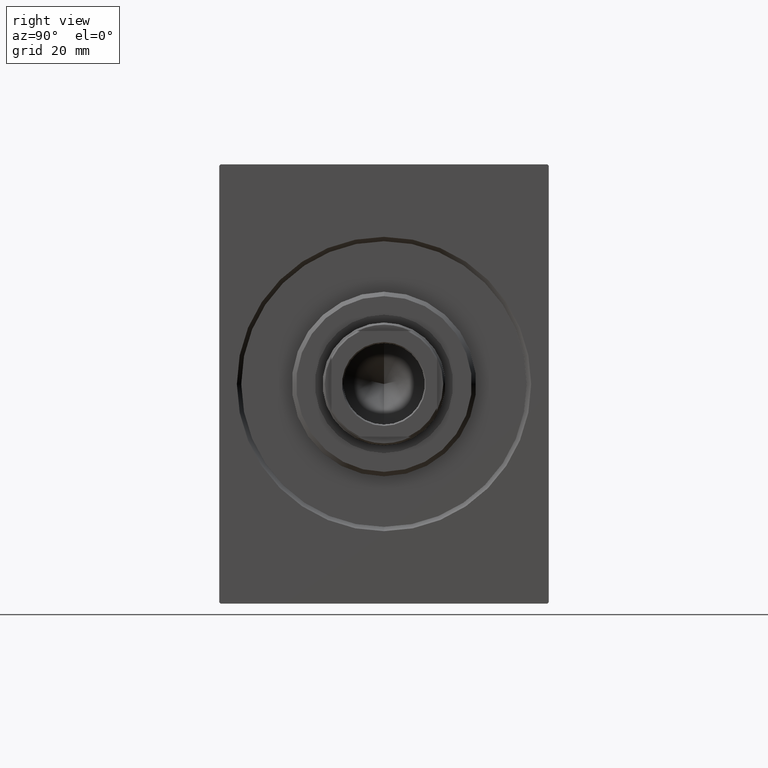
[diagram: clean part render]
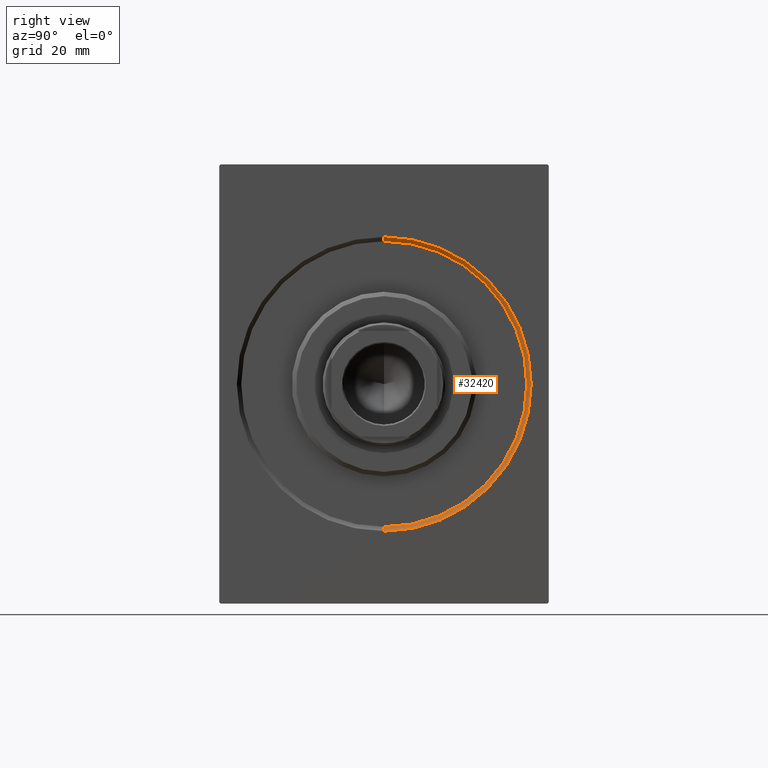
[diagram: same view with one face highlighted and labeled with its STEP entity id]
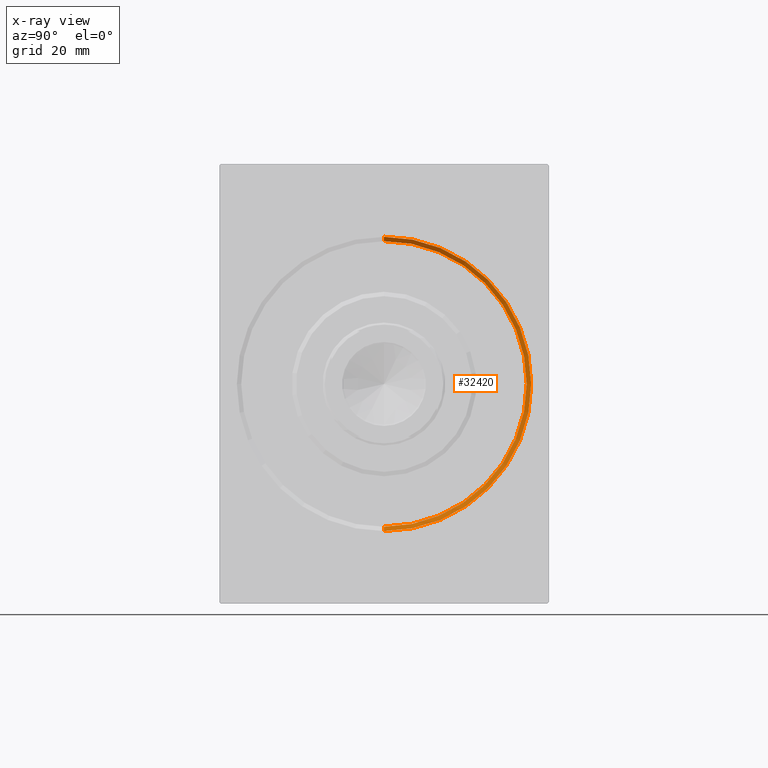
[diagram: x-ray of the same camera — body ghosted, the highlighted face saturated]
A machine part, right view. The second image highlights one B-rep face of the part: STEP entity #32420.
The next image is the same camera in x-ray: the body ghosted, the highlighted face saturated — about 0% of this face is hidden behind the body in this view.
In plain terms, the highlighted conical surface has half-angle 45 deg.
Its self-contained STEP definition (entity closure, byte-faithful):
#199 = EDGE_CURVE ( 'NONE', #8059, #30623, #35343, .T. ) ;
#1860 = EDGE_CURVE ( 'NONE', #8059, #9787, #34172, .T. ) ;
#2044 = CARTESIAN_POINT ( 'NONE',  ( 0.9999999999999870104, 3.980102097228898626E-15, -32.50000000000000000 ) ) ;
#2060 = DIRECTION ( 'NONE',  ( -0.7071067811865474617, 8.659560562354932858E-17, -0.7071067811865474617 ) ) ;
#3095 = DIRECTION ( 'NONE',  ( 0.000000000000000000, 0.000000000000000000, -1.000000000000000000 ) ) ;
#4040 = CIRCLE ( 'NONE', #8904, 33.49999999999998579 ) ;
#7662 = DIRECTION ( 'NONE',  ( -0.7071067811865474617, 0.000000000000000000, 0.7071067811865474617 ) ) ;
#7984 = ORIENTED_EDGE ( 'NONE', *, *, #199, .F. ) ;
#8059 = VERTEX_POINT ( 'NONE', #2044 ) ;
#8904 = AXIS2_PLACEMENT_3D ( 'NONE', #26027, #39257, #3095 ) ;
#9787 = VERTEX_POINT ( 'NONE', #23578 ) ;
#10748 = DIRECTION ( 'NONE',  ( -1.000000000000000000, 0.000000000000000000, 0.000000000000000000 ) ) ;
#13030 = ORIENTED_EDGE ( 'NONE', *, *, #16583, .F. ) ;
#15863 = DIRECTION ( 'NONE',  ( 0.000000000000000000, 0.000000000000000000, -1.000000000000000000 ) ) ;
#16583 = EDGE_CURVE ( 'NONE', #37447, #9787, #4040, .T. ) ;
#17343 = EDGE_CURVE ( 'NONE', #30623, #37447, #24075, .T. ) ;
#18512 = CARTESIAN_POINT ( 'NONE',  ( 0.9999999999999870104, 3.980102097228898626E-15, -32.50000000000000000 ) ) ;
#19838 = CARTESIAN_POINT ( 'NONE',  ( 0.9999999999999870104, 0.000000000000000000, 32.50000000000000000 ) ) ;
#22105 = VECTOR ( 'NONE', #2060, 1000.000000000000114 ) ;
#22146 = EDGE_LOOP ( 'NONE', ( #7984, #27077, #13030, #42313 ) ) ;
#22679 = VECTOR ( 'NONE', #7662, 1000.000000000000114 ) ;
#23578 = CARTESIAN_POINT ( 'NONE',  ( 0.000000000000000000, 4.102566777143632196E-15, -33.49999999999998579 ) ) ;
#23925 = DIRECTION ( 'NONE',  ( 0.000000000000000000, 0.000000000000000000, 1.000000000000000000 ) ) ;
#24075 = LINE ( 'NONE', #39709, #22679 ) ;
#25801 = CARTESIAN_POINT ( 'NONE',  ( 0.9999999999999870104, 0.000000000000000000, 0.000000000000000000 ) ) ;
#26027 = CARTESIAN_POINT ( 'NONE',  ( 0.000000000000000000, 0.000000000000000000, 0.000000000000000000 ) ) ;
#27077 = ORIENTED_EDGE ( 'NONE', *, *, #1860, .T. ) ;
#27193 = CARTESIAN_POINT ( 'NONE',  ( 0.9999999999999870104, 0.000000000000000000, 0.000000000000000000 ) ) ;
#27400 = AXIS2_PLACEMENT_3D ( 'NONE', #27193, #10748, #23925 ) ;
#29056 = DIRECTION ( 'NONE',  ( -1.000000000000000000, 0.000000000000000000, 0.000000000000000000 ) ) ;
#30623 = VERTEX_POINT ( 'NONE', #19838 ) ;
#32420 = ADVANCED_FACE ( 'NONE', ( #40866 ), #35050, .F. ) ;
#34172 = LINE ( 'NONE', #18512, #22105 ) ;
#35050 = CONICAL_SURFACE ( 'NONE', #27400, 32.50000000000000000, 0.7853981633974482790 ) ;
#35343 = CIRCLE ( 'NONE', #36620, 32.50000000000000000 ) ;
#36620 = AXIS2_PLACEMENT_3D ( 'NONE', #25801, #29056, #15863 ) ;
#37447 = VERTEX_POINT ( 'NONE', #39368 ) ;
#39257 = DIRECTION ( 'NONE',  ( 1.000000000000000000, 0.000000000000000000, 0.000000000000000000 ) ) ;
#39368 = CARTESIAN_POINT ( 'NONE',  ( 0.000000000000000000, 0.000000000000000000, 33.49999999999998579 ) ) ;
#39709 = CARTESIAN_POINT ( 'NONE',  ( 0.9999999999999870104, 0.000000000000000000, 32.50000000000000000 ) ) ;
#40866 = FACE_OUTER_BOUND ( 'NONE', #22146, .T. ) ;
#42313 = ORIENTED_EDGE ( 'NONE', *, *, #17343, .F. ) ;